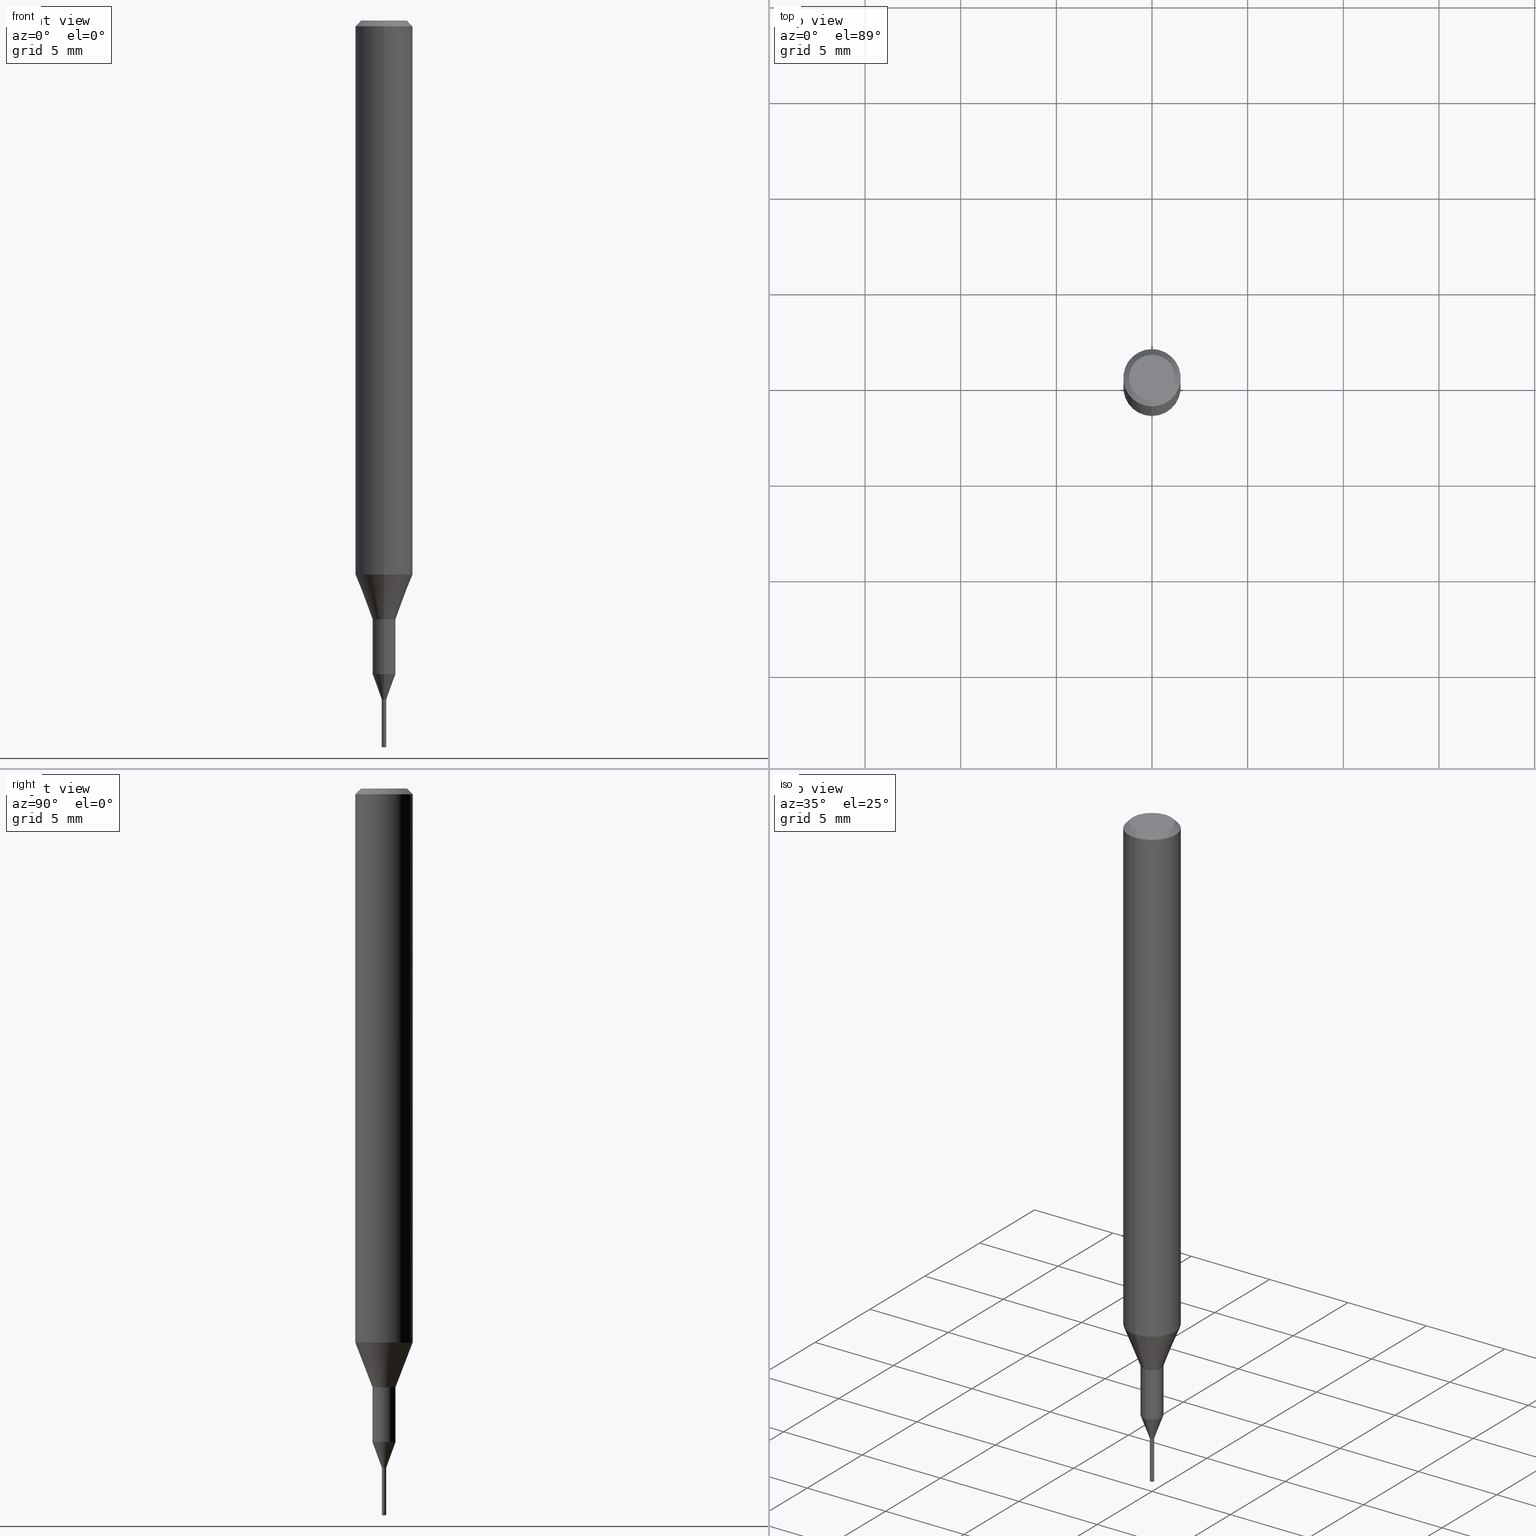
[diagram: canonical four-view strip — front | top / right | iso, engineering-drawing reading convention]
A machine part, canonical four-view strip (front | top / right | iso — engineering-drawing reading convention). The complete STEP part file that produces these views, byte-faithful:
ISO-10303-21;
HEADER;
FILE_DESCRIPTION(('no description'),'unknown implementation level');
FILE_NAME('C-UMD2023-025-Huellk.stp','  ',('CIMSOURCE GmbH'),('CADClick - KiM GmbH - www.kimweb.de'),'unknown preprocess','ACIS','unknown authorization');
FILE_SCHEMA(('automotive_design'));
ENDSEC;
DATA;
#1=MECHANICAL_DESIGN_GEOMETRIC_PRESENTATION_REPRESENTATION(' ',(#14,#15,#16,#17,#18,#19,#20,#21,#22,#23,#24,#25,#26,#27,#28,#29,#30,#31,#32,#33,#34,#35,#36,#37,#38,#39,#40,#41,#42,#43,#44,#45,#46,#47,#48,#49,#50,#51,#52,#53,#54,#55,#56,#57,#58,#59,#60,#61,#62,#63,#64,#65,#66,#67,#68,#69,#70,#71,#72,#73,#74,#75,#76,#77,#78,#79,#80,#81,#82,#83,#84,#85,#86,#87,#88,#89,#90,#91,#92),#10);
#2=PRODUCT_DEFINITION_CONTEXT('',#93,'design');
#3=APPLICATION_PROTOCOL_DEFINITION('INTERNATIONAL STANDARD','automotive_design',1994,#93);
#4=PRODUCT_CATEGORY_RELATIONSHIP('NONE','NONE',#94,#95);
#5=SHAPE_DEFINITION_REPRESENTATION(#96,#97);
#6=PRODUCT_DEFINITION_CONTEXT('',#98,'design');
#7=APPLICATION_PROTOCOL_DEFINITION('INTERNATIONAL STANDARD','automotive_design',1994,#98);
#8=PRODUCT_CATEGORY_RELATIONSHIP('NONE','NONE',#99,#100);
#9=SHAPE_DEFINITION_REPRESENTATION(#101,#102);
#10= (GEOMETRIC_REPRESENTATION_CONTEXT(3)GLOBAL_UNCERTAINTY_ASSIGNED_CONTEXT((#105))GLOBAL_UNIT_ASSIGNED_CONTEXT((#107,#108,#109))REPRESENTATION_CONTEXT('NONE','WORKSPACE'));
#14=STYLED_ITEM('',(#111),#112);
#15=STYLED_ITEM('',(#113),#114);
#16=STYLED_ITEM('',(#115),#116);
#17=STYLED_ITEM('',(#117),#118);
#18=STYLED_ITEM('',(#119),#120);
#19=STYLED_ITEM('',(#121),#122);
#20=STYLED_ITEM('',(#123),#124);
#21=STYLED_ITEM('',(#125),#126);
#22=STYLED_ITEM('',(#127),#128);
#23=STYLED_ITEM('',(#129),#130);
#24=STYLED_ITEM('',(#131),#132);
#25=STYLED_ITEM('',(#133),#134);
#26=STYLED_ITEM('',(#135),#136);
#27=STYLED_ITEM('',(#137),#138);
#28=STYLED_ITEM('',(#139),#140);
#29=STYLED_ITEM('',(#141),#142);
#30=STYLED_ITEM('',(#143),#144);
#31=STYLED_ITEM('',(#145),#146);
#32=STYLED_ITEM('',(#147),#148);
#33=STYLED_ITEM('',(#149),#150);
#34=STYLED_ITEM('',(#151),#152);
#35=STYLED_ITEM('',(#153),#154);
#36=STYLED_ITEM('',(#155),#156);
#37=STYLED_ITEM('',(#157),#158);
#38=STYLED_ITEM('',(#159),#160);
#39=STYLED_ITEM('',(#161),#162);
#40=STYLED_ITEM('',(#163),#164);
#41=STYLED_ITEM('',(#165),#166);
#42=STYLED_ITEM('',(#167),#168);
#43=STYLED_ITEM('',(#169),#170);
#44=STYLED_ITEM('',(#171),#172);
#45=STYLED_ITEM('',(#173),#174);
#46=STYLED_ITEM('',(#175),#176);
#47=STYLED_ITEM('',(#177),#178);
#48=STYLED_ITEM('',(#179),#180);
#49=STYLED_ITEM('',(#181),#182);
#50=STYLED_ITEM('',(#183),#184);
#51=STYLED_ITEM('',(#185),#186);
#52=STYLED_ITEM('',(#187),#188);
#53=STYLED_ITEM('',(#189),#190);
#54=STYLED_ITEM('',(#191),#192);
#55=STYLED_ITEM('',(#193),#194);
#56=STYLED_ITEM('',(#195),#196);
#57=STYLED_ITEM('',(#197),#198);
#58=STYLED_ITEM('',(#199),#200);
#59=STYLED_ITEM('',(#201),#202);
#60=STYLED_ITEM('',(#203),#204);
#61=STYLED_ITEM('',(#205),#206);
#62=STYLED_ITEM('',(#207),#208);
#63=STYLED_ITEM('',(#209),#210);
#64=STYLED_ITEM('',(#211),#212);
#65=STYLED_ITEM('',(#213),#214);
#66=STYLED_ITEM('',(#215),#216);
#67=STYLED_ITEM('',(#217),#218);
#68=STYLED_ITEM('',(#219),#220);
#69=STYLED_ITEM('',(#221),#222);
#70=STYLED_ITEM('',(#223),#224);
#71=STYLED_ITEM('',(#225),#226);
#72=STYLED_ITEM('',(#227),#228);
#73=STYLED_ITEM('',(#229),#230);
#74=STYLED_ITEM('',(#231),#232);
#75=STYLED_ITEM('',(#233),#234);
#76=STYLED_ITEM('',(#235),#236);
#77=STYLED_ITEM('',(#237),#238);
#78=STYLED_ITEM('',(#239),#240);
#79=STYLED_ITEM('',(#241),#242);
#80=STYLED_ITEM('',(#243),#244);
#81=STYLED_ITEM('',(#245),#246);
#82=STYLED_ITEM('',(#247),#248);
#83=STYLED_ITEM('',(#249),#250);
#84=STYLED_ITEM('',(#251),#252);
#85=STYLED_ITEM('',(#253),#254);
#86=STYLED_ITEM('',(#255),#256);
#87=STYLED_ITEM('',(#257),#258);
#88=STYLED_ITEM('',(#259),#260);
#89=STYLED_ITEM('',(#261),#262);
#90=STYLED_ITEM('',(#263),#264);
#91=STYLED_ITEM('',(#265),#266);
#92=STYLED_ITEM('',(#267),#268);
#93=APPLICATION_CONTEXT(' ');
#94=PRODUCT_CATEGORY('part','NONE');
#95=PRODUCT_RELATED_PRODUCT_CATEGORY('detail',' ',(#269));
#96=PRODUCT_DEFINITION_SHAPE('NONE','NONE',#270);
#97=ADVANCED_BREP_SHAPE_REPRESENTATION('1',(#118,#271),#10);
#98=APPLICATION_CONTEXT(' ');
#99=PRODUCT_CATEGORY('part','NONE');
#100=PRODUCT_RELATED_PRODUCT_CATEGORY('detail',' ',(#272));
#101=PRODUCT_DEFINITION_SHAPE('NONE','NONE',#273);
#102=ADVANCED_BREP_SHAPE_REPRESENTATION('2',(#120,#274),#10);
#105=UNCERTAINTY_MEASURE_WITH_UNIT(LENGTH_MEASURE(1.0E-006),#107,'','');
#107= (CONVERSION_BASED_UNIT('MILLIMETRE',#277)LENGTH_UNIT()NAMED_UNIT(#280));
#108= (NAMED_UNIT(#282)PLANE_ANGLE_UNIT()SI_UNIT($,.RADIAN.));
#109= (NAMED_UNIT(#282)SOLID_ANGLE_UNIT()SI_UNIT($,.STERADIAN.));
#111=PRESENTATION_STYLE_ASSIGNMENT((#288));
#112=VERTEX_POINT('',#289);
#113=PRESENTATION_STYLE_ASSIGNMENT((#290));
#114=EDGE_CURVE('',#260,#248,#291,.T.);
#115=PRESENTATION_STYLE_ASSIGNMENT((#292));
#116=ADVANCED_FACE('',(#293),#294,.T.);
#117=PRESENTATION_STYLE_ASSIGNMENT((#295));
#118=MANIFOLD_SOLID_BREP('1',#296);
#119=PRESENTATION_STYLE_ASSIGNMENT((#297));
#120=MANIFOLD_SOLID_BREP('2',#298);
#121=PRESENTATION_STYLE_ASSIGNMENT((#299));
#122=EDGE_CURVE('',#164,#112,#300,.T.);
#123=PRESENTATION_STYLE_ASSIGNMENT((#301));
#124=ADVANCED_FACE('',(#302),#303,.T.);
#125=PRESENTATION_STYLE_ASSIGNMENT((#304));
#126=ADVANCED_FACE('',(#305),#306,.T.);
#127=PRESENTATION_STYLE_ASSIGNMENT((#307));
#128=EDGE_CURVE('',#166,#260,#308,.T.);
#129=PRESENTATION_STYLE_ASSIGNMENT((#309));
#130=EDGE_CURVE('',#186,#142,#310,.T.);
#131=PRESENTATION_STYLE_ASSIGNMENT((#311));
#132=VERTEX_POINT('',#312);
#133=PRESENTATION_STYLE_ASSIGNMENT((#313));
#134=EDGE_CURVE('',#248,#196,#314,.T.);
#135=PRESENTATION_STYLE_ASSIGNMENT((#315));
#136=EDGE_CURVE('',#196,#166,#316,.T.);
#137=PRESENTATION_STYLE_ASSIGNMENT((#317));
#138=EDGE_CURVE('',#226,#238,#318,.T.);
#139=PRESENTATION_STYLE_ASSIGNMENT((#319));
#140=ADVANCED_FACE('',(#320),#321,.T.);
#141=PRESENTATION_STYLE_ASSIGNMENT((#322));
#142=VERTEX_POINT('',#323);
#143=PRESENTATION_STYLE_ASSIGNMENT((#324));
#144=EDGE_CURVE('',#188,#260,#325,.T.);
#145=PRESENTATION_STYLE_ASSIGNMENT((#326));
#146=EDGE_CURVE('',#132,#226,#327,.T.);
#147=PRESENTATION_STYLE_ASSIGNMENT((#328));
#148=ADVANCED_FACE('',(#329),#330,.T.);
#149=PRESENTATION_STYLE_ASSIGNMENT((#331));
#150=EDGE_CURVE('',#200,#188,#332,.T.);
#151=PRESENTATION_STYLE_ASSIGNMENT((#333));
#152=EDGE_CURVE('',#112,#186,#334,.T.);
#153=PRESENTATION_STYLE_ASSIGNMENT((#335));
#154=EDGE_CURVE('',#212,#196,#336,.T.);
#155=PRESENTATION_STYLE_ASSIGNMENT((#337));
#156=VERTEX_POINT('',#338);
#157=PRESENTATION_STYLE_ASSIGNMENT((#339));
#158=EDGE_CURVE('',#112,#164,#340,.T.);
#159=PRESENTATION_STYLE_ASSIGNMENT((#341));
#160=ADVANCED_FACE('',(#342),#343,.T.);
#161=PRESENTATION_STYLE_ASSIGNMENT((#344));
#162=EDGE_CURVE('',#206,#184,#345,.T.);
#163=PRESENTATION_STYLE_ASSIGNMENT((#346));
#164=VERTEX_POINT('',#347);
#165=PRESENTATION_STYLE_ASSIGNMENT((#348));
#166=VERTEX_POINT('',#349);
#167=PRESENTATION_STYLE_ASSIGNMENT((#350));
#168=ADVANCED_FACE('',(#351),#352,.T.);
#169=PRESENTATION_STYLE_ASSIGNMENT((#353));
#170=ADVANCED_FACE('',(#354),#355,.T.);
#171=PRESENTATION_STYLE_ASSIGNMENT((#356));
#172=EDGE_CURVE('',#142,#186,#357,.T.);
#173=PRESENTATION_STYLE_ASSIGNMENT((#358));
#174=ADVANCED_FACE('',(#359),#360,.T.);
#175=PRESENTATION_STYLE_ASSIGNMENT((#361));
#176=EDGE_CURVE('',#256,#212,#362,.T.);
#177=PRESENTATION_STYLE_ASSIGNMENT((#363));
#178=EDGE_CURVE('',#206,#112,#364,.T.);
#179=PRESENTATION_STYLE_ASSIGNMENT((#365));
#180=ADVANCED_FACE('',(#366,#367),#368,.T.);
#181=PRESENTATION_STYLE_ASSIGNMENT((#369));
#182=ADVANCED_FACE('',(#370),#371,.T.);
#183=PRESENTATION_STYLE_ASSIGNMENT((#372));
#184=VERTEX_POINT('',#373);
#185=PRESENTATION_STYLE_ASSIGNMENT((#374));
#186=VERTEX_POINT('',#375);
#187=PRESENTATION_STYLE_ASSIGNMENT((#376));
#188=VERTEX_POINT('',#377);
#189=PRESENTATION_STYLE_ASSIGNMENT((#378));
#190=EDGE_CURVE('',#132,#238,#379,.T.);
#191=PRESENTATION_STYLE_ASSIGNMENT((#380));
#192=EDGE_CURVE('',#204,#208,#381,.T.);
#193=PRESENTATION_STYLE_ASSIGNMENT((#382));
#194=ADVANCED_FACE('',(#383),#384,.T.);
#195=PRESENTATION_STYLE_ASSIGNMENT((#385));
#196=VERTEX_POINT('',#386);
#197=PRESENTATION_STYLE_ASSIGNMENT((#387));
#198=EDGE_CURVE('',#142,#164,#388,.T.);
#199=PRESENTATION_STYLE_ASSIGNMENT((#389));
#200=VERTEX_POINT('',#390);
#201=PRESENTATION_STYLE_ASSIGNMENT((#391));
#202=EDGE_CURVE('',#164,#184,#392,.T.);
#203=PRESENTATION_STYLE_ASSIGNMENT((#393));
#204=VERTEX_POINT('',#394);
#205=PRESENTATION_STYLE_ASSIGNMENT((#395));
#206=VERTEX_POINT('',#396);
#207=PRESENTATION_STYLE_ASSIGNMENT((#397));
#208=VERTEX_POINT('',#398);
#209=PRESENTATION_STYLE_ASSIGNMENT((#399));
#210=ADVANCED_FACE('',(#400),#401,.T.);
#211=PRESENTATION_STYLE_ASSIGNMENT((#402));
#212=VERTEX_POINT('',#403);
#213=PRESENTATION_STYLE_ASSIGNMENT((#404));
#214=VERTEX_POINT('',#405);
#215=PRESENTATION_STYLE_ASSIGNMENT((#406));
#216=EDGE_CURVE('',#156,#214,#407,.T.);
#217=PRESENTATION_STYLE_ASSIGNMENT((#408));
#218=EDGE_CURVE('',#184,#206,#409,.T.);
#219=PRESENTATION_STYLE_ASSIGNMENT((#410));
#220=EDGE_CURVE('',#238,#132,#411,.T.);
#221=PRESENTATION_STYLE_ASSIGNMENT((#412));
#222=EDGE_CURVE('',#248,#256,#413,.T.);
#223=PRESENTATION_STYLE_ASSIGNMENT((#414));
#224=ADVANCED_FACE('',(#415),#416,.T.);
#225=PRESENTATION_STYLE_ASSIGNMENT((#417));
#226=VERTEX_POINT('',#418);
#227=PRESENTATION_STYLE_ASSIGNMENT((#419));
#228=ADVANCED_FACE('',(#420),#421,.T.);
#229=PRESENTATION_STYLE_ASSIGNMENT((#422));
#230=EDGE_CURVE('',#204,#156,#423,.T.);
#231=PRESENTATION_STYLE_ASSIGNMENT((#424));
#232=EDGE_CURVE('',#212,#256,#425,.T.);
#233=PRESENTATION_STYLE_ASSIGNMENT((#426));
#234=EDGE_CURVE('',#214,#156,#427,.T.);
#235=PRESENTATION_STYLE_ASSIGNMENT((#428));
#236=EDGE_CURVE('',#260,#166,#429,.T.);
#237=PRESENTATION_STYLE_ASSIGNMENT((#430));
#238=VERTEX_POINT('',#431);
#239=PRESENTATION_STYLE_ASSIGNMENT((#432));
#240=EDGE_CURVE('',#208,#132,#433,.T.);
#241=PRESENTATION_STYLE_ASSIGNMENT((#434));
#242=EDGE_CURVE('',#208,#204,#435,.T.);
#243=PRESENTATION_STYLE_ASSIGNMENT((#436));
#244=EDGE_CURVE('',#238,#204,#437,.T.);
#245=PRESENTATION_STYLE_ASSIGNMENT((#438));
#246=ADVANCED_FACE('',(#439),#440,.T.);
#247=PRESENTATION_STYLE_ASSIGNMENT((#441));
#248=VERTEX_POINT('',#442);
#249=PRESENTATION_STYLE_ASSIGNMENT((#443));
#250=EDGE_CURVE('',#188,#200,#444,.T.);
#251=PRESENTATION_STYLE_ASSIGNMENT((#445));
#252=EDGE_CURVE('',#214,#208,#446,.T.);
#253=PRESENTATION_STYLE_ASSIGNMENT((#447));
#254=EDGE_CURVE('',#196,#248,#448,.T.);
#255=PRESENTATION_STYLE_ASSIGNMENT((#449));
#256=VERTEX_POINT('',#450);
#257=PRESENTATION_STYLE_ASSIGNMENT((#451));
#258=ADVANCED_FACE('',(#452),#453,.T.);
#259=PRESENTATION_STYLE_ASSIGNMENT((#454));
#260=VERTEX_POINT('',#455);
#261=PRESENTATION_STYLE_ASSIGNMENT((#456));
#262=ADVANCED_FACE('',(#457),#458,.T.);
#263=PRESENTATION_STYLE_ASSIGNMENT((#459));
#264=EDGE_CURVE('',#166,#200,#460,.T.);
#265=PRESENTATION_STYLE_ASSIGNMENT((#461));
#266=ADVANCED_FACE('',(#462),#463,.T.);
#267=PRESENTATION_STYLE_ASSIGNMENT((#464));
#268=ADVANCED_FACE('',(#465),#466,.T.);
#269=PRODUCT('1','1','PART-1-DESC',(#467));
#270=PRODUCT_DEFINITION('NONE','NONE',#468,#2);
#271=AXIS2_PLACEMENT_3D('',#469,#470,#471);
#272=PRODUCT('2','2','PART-2-DESC',(#472));
#273=PRODUCT_DEFINITION('NONE','NONE',#473,#6);
#274=AXIS2_PLACEMENT_3D('',#474,#475,#476);
#277=LENGTH_MEASURE_WITH_UNIT(LENGTH_MEASURE(1.0),#477);
#280=DIMENSIONAL_EXPONENTS(1.0,0.0,0.0,0.0,0.0,0.0,0.0);
#282=DIMENSIONAL_EXPONENTS(0.0,0.0,0.0,0.0,0.0,0.0,0.0);
#288=POINT_STYLE(' ',#478,POSITIVE_LENGTH_MEASURE(1.0E-006),#479);
#289=CARTESIAN_POINT('',(7.34702581975735E-017,-0.59995,-34.167));
#290=CURVE_STYLE('',#480,POSITIVE_LENGTH_MEASURE(1.0E-006),#481);
#291=LINE('',#482,#483);
#292=SURFACE_STYLE_USAGE(.BOTH.,#484);
#293=FACE_OUTER_BOUND('',#485,.T.);
#294=CONICAL_SURFACE('',#486,0.357493190172543,0.34891856905372);
#295=SURFACE_STYLE_USAGE(.BOTH.,#487);
#296=CLOSED_SHELL('',(#174,#210,#126,#140,#268,#246,#148,#228,#194,#180,#160,#116,#168));
#297=SURFACE_STYLE_USAGE(.BOTH.,#488);
#298=CLOSED_SHELL('',(#124,#266,#182,#262,#224,#258,#170));
#299=CURVE_STYLE('',#489,POSITIVE_LENGTH_MEASURE(1.0E-006),#490);
#300=CIRCLE('',#491,0.59995);
#301=SURFACE_STYLE_USAGE(.BOTH.,#492);
#302=FACE_OUTER_BOUND('',#493,.T.);
#303=CONICAL_SURFACE('',#494,0.0575,1.30899691570758);
#304=SURFACE_STYLE_USAGE(.BOTH.,#495);
#305=FACE_OUTER_BOUND('',#496,.T.);
#306=CONICAL_SURFACE('',#497,1.05,0.366459241971866);
#307=CURVE_STYLE('',#498,POSITIVE_LENGTH_MEASURE(1.0E-006),#499);
#308=CIRCLE('',#500,1.5);
#309=CURVE_STYLE('',#501,POSITIVE_LENGTH_MEASURE(1.0E-006),#502);
#310=CIRCLE('',#503,0.59995);
#311=POINT_STYLE(' ',#504,POSITIVE_LENGTH_MEASURE(1.0E-006),#505);
#312=CARTESIAN_POINT('',(-0.115,0.0,-37.96918584));
#313=CURVE_STYLE('',#506,POSITIVE_LENGTH_MEASURE(1.0E-006),#507);
#314=CIRCLE('',#508,1.5);
#315=CURVE_STYLE('',#509,POSITIVE_LENGTH_MEASURE(1.0E-006),#510);
#316=LINE('',#511,#512);
#317=CURVE_STYLE('',#513,POSITIVE_LENGTH_MEASURE(1.0E-006),#514);
#318=LINE('',#515,#516);
#319=SURFACE_STYLE_USAGE(.BOTH.,#517);
#320=FACE_OUTER_BOUND('',#518,.T.);
#321=CYLINDRICAL_SURFACE('',#519,1.5);
#322=POINT_STYLE(' ',#520,POSITIVE_LENGTH_MEASURE(1.0E-006),#521);
#323=CARTESIAN_POINT('',(0.0,0.59995,-31.3));
#324=CURVE_STYLE('',#522,POSITIVE_LENGTH_MEASURE(1.0E-006),#523);
#325=LINE('',#524,#525);
#326=CURVE_STYLE('',#526,POSITIVE_LENGTH_MEASURE(1.0E-006),#527);
#327=LINE('',#528,#529);
#328=SURFACE_STYLE_USAGE(.BOTH.,#530);
#329=FACE_OUTER_BOUND('',#531,.T.);
#330=CONICAL_SURFACE('',#532,1.35,0.785398163397447);
#331=CURVE_STYLE('',#533,POSITIVE_LENGTH_MEASURE(1.0E-006),#534);
#332=CIRCLE('',#535,0.6);
#333=CURVE_STYLE('',#536,POSITIVE_LENGTH_MEASURE(1.0E-006),#537);
#334=LINE('',#538,#539);
#335=CURVE_STYLE('',#540,POSITIVE_LENGTH_MEASURE(1.0E-006),#541);
#336=LINE('',#542,#543);
#337=POINT_STYLE(' ',#544,POSITIVE_LENGTH_MEASURE(1.0E-006),#545);
#338=CARTESIAN_POINT('',(0.116036384096024,1.42098893238565E-017,-35.4999));
#339=CURVE_STYLE('',#546,POSITIVE_LENGTH_MEASURE(1.0E-006),#547);
#340=CIRCLE('',#548,0.59995);
#341=SURFACE_STYLE_USAGE(.BOTH.,#549);
#342=FACE_OUTER_BOUND('',#550,.T.);
#343=CYLINDRICAL_SURFACE('',#551,0.59995);
#344=CURVE_STYLE('',#552,POSITIVE_LENGTH_MEASURE(1.0E-006),#553);
#345=CIRCLE('',#554,0.115036380345086);
#346=POINT_STYLE(' ',#555,POSITIVE_LENGTH_MEASURE(1.0E-006),#556);
#347=CARTESIAN_POINT('',(0.0,0.59995,-34.167));
#348=POINT_STYLE(' ',#557,POSITIVE_LENGTH_MEASURE(1.0E-006),#558);
#349=CARTESIAN_POINT('',(0.0,1.5,-28.955));
#350=SURFACE_STYLE_USAGE(.BOTH.,#559);
#351=FACE_OUTER_BOUND('',#560,.T.);
#352=PLANE('',#561);
#353=SURFACE_STYLE_USAGE(.BOTH.,#562);
#354=FACE_OUTER_BOUND('',#563,.T.);
#355=CONICAL_SURFACE('',#564,0.0575,1.30899691570758);
#356=CURVE_STYLE('',#565,POSITIVE_LENGTH_MEASURE(1.0E-006),#566);
#357=CIRCLE('',#567,0.59995);
#358=SURFACE_STYLE_USAGE(.BOTH.,#568);
#359=FACE_OUTER_BOUND('',#569,.T.);
#360=CONICAL_SURFACE('',#570,0.357493190172543,0.34891856905372);
#361=CURVE_STYLE('',#571,POSITIVE_LENGTH_MEASURE(1.0E-006),#572);
#362=CIRCLE('',#573,1.2);
#363=CURVE_STYLE('',#574,POSITIVE_LENGTH_MEASURE(1.0E-006),#575);
#364=LINE('',#576,#577);
#365=SURFACE_STYLE_USAGE(.BOTH.,#578);
#366=FACE_BOUND('',#579,.T.);
#367=FACE_OUTER_BOUND('',#580,.T.);
#368=PLANE('',#581);
#369=SURFACE_STYLE_USAGE(.BOTH.,#582);
#370=FACE_OUTER_BOUND('',#583,.T.);
#371=CONICAL_SURFACE('',#584,0.115518192048012,1.47460478653553);
#372=POINT_STYLE(' ',#585,POSITIVE_LENGTH_MEASURE(1.0E-006),#586);
#373=CARTESIAN_POINT('',(0.0,0.115036380345086,-35.4999));
#374=POINT_STYLE(' ',#587,POSITIVE_LENGTH_MEASURE(1.0E-006),#588);
#375=CARTESIAN_POINT('',(7.34702581975735E-017,-0.59995,-31.3));
#376=POINT_STYLE(' ',#589,POSITIVE_LENGTH_MEASURE(1.0E-006),#590);
#377=CARTESIAN_POINT('',(7.34763812293426E-017,-0.6,-31.3));
#378=CURVE_STYLE('',#591,POSITIVE_LENGTH_MEASURE(1.0E-006),#592);
#379=CIRCLE('',#593,0.115);
#380=CURVE_STYLE('',#594,POSITIVE_LENGTH_MEASURE(1.0E-006),#595);
#381=CIRCLE('',#596,0.115);
#382=SURFACE_STYLE_USAGE(.BOTH.,#597);
#383=FACE_OUTER_BOUND('',#598,.T.);
#384=CONICAL_SURFACE('',#599,1.05,0.366459241971866);
#385=POINT_STYLE(' ',#600,POSITIVE_LENGTH_MEASURE(1.0E-006),#601);
#386=CARTESIAN_POINT('',(0.0,1.5,-0.300000000000001));
#387=CURVE_STYLE('',#602,POSITIVE_LENGTH_MEASURE(1.0E-006),#603);
#388=LINE('',#604,#605);
#389=POINT_STYLE(' ',#606,POSITIVE_LENGTH_MEASURE(1.0E-006),#607);
#390=CARTESIAN_POINT('',(0.0,0.6,-31.3));
#391=CURVE_STYLE('',#608,POSITIVE_LENGTH_MEASURE(1.0E-006),#609);
#392=LINE('',#610,#611);
#393=POINT_STYLE(' ',#612,POSITIVE_LENGTH_MEASURE(1.0E-006),#613);
#394=CARTESIAN_POINT('',(0.115,1.40829730689573E-017,-35.5));
#395=POINT_STYLE(' ',#614,POSITIVE_LENGTH_MEASURE(1.0E-006),#615);
#396=CARTESIAN_POINT('',(1.4087428229132E-017,-0.115036380345086,-35.4999));
#397=POINT_STYLE(' ',#616,POSITIVE_LENGTH_MEASURE(1.0E-006),#617);
#398=CARTESIAN_POINT('',(-0.115,0.0,-35.5));
#399=SURFACE_STYLE_USAGE(.BOTH.,#618);
#400=FACE_OUTER_BOUND('',#619,.T.);
#401=CYLINDRICAL_SURFACE('',#620,0.59995);
#402=POINT_STYLE(' ',#621,POSITIVE_LENGTH_MEASURE(1.0E-006),#622);
#403=CARTESIAN_POINT('',(0.0,1.2,0.0));
#404=POINT_STYLE(' ',#623,POSITIVE_LENGTH_MEASURE(1.0E-006),#624);
#405=CARTESIAN_POINT('',(-0.116036384096024,0.0,-35.4999));
#406=CURVE_STYLE('',#625,POSITIVE_LENGTH_MEASURE(1.0E-006),#626);
#407=CIRCLE('',#627,0.116036384096024);
#408=CURVE_STYLE('',#628,POSITIVE_LENGTH_MEASURE(1.0E-006),#629);
#409=CIRCLE('',#630,0.115036380345086);
#410=CURVE_STYLE('',#631,POSITIVE_LENGTH_MEASURE(1.0E-006),#632);
#411=CIRCLE('',#633,0.115);
#412=CURVE_STYLE('',#634,POSITIVE_LENGTH_MEASURE(1.0E-006),#635);
#413=LINE('',#636,#637);
#414=SURFACE_STYLE_USAGE(.BOTH.,#638);
#415=FACE_OUTER_BOUND('',#639,.T.);
#416=CONICAL_SURFACE('',#640,0.115518192048012,1.47460478653553);
#417=POINT_STYLE(' ',#641,POSITIVE_LENGTH_MEASURE(1.0E-006),#642);
#418=CARTESIAN_POINT('',(0.0,0.0,-38.0));
#419=SURFACE_STYLE_USAGE(.BOTH.,#643);
#420=FACE_OUTER_BOUND('',#644,.T.);
#421=CYLINDRICAL_SURFACE('',#645,1.5);
#422=CURVE_STYLE('',#646,POSITIVE_LENGTH_MEASURE(1.0E-006),#647);
#423=LINE('',#648,#649);
#424=CURVE_STYLE('',#650,POSITIVE_LENGTH_MEASURE(1.0E-006),#651);
#425=CIRCLE('',#652,1.2);
#426=CURVE_STYLE('',#653,POSITIVE_LENGTH_MEASURE(1.0E-006),#654);
#427=CIRCLE('',#655,0.116036384096024);
#428=CURVE_STYLE('',#656,POSITIVE_LENGTH_MEASURE(1.0E-006),#657);
#429=CIRCLE('',#658,1.5);
#430=POINT_STYLE(' ',#659,POSITIVE_LENGTH_MEASURE(1.0E-006),#660);
#431=CARTESIAN_POINT('',(0.115,1.40829730689573E-017,-37.96918584));
#432=CURVE_STYLE('',#661,POSITIVE_LENGTH_MEASURE(1.0E-006),#662);
#433=LINE('',#663,#664);
#434=CURVE_STYLE('',#665,POSITIVE_LENGTH_MEASURE(1.0E-006),#666);
#435=CIRCLE('',#667,0.115);
#436=CURVE_STYLE('',#668,POSITIVE_LENGTH_MEASURE(1.0E-006),#669);
#437=LINE('',#670,#671);
#438=SURFACE_STYLE_USAGE(.BOTH.,#672);
#439=FACE_OUTER_BOUND('',#673,.T.);
#440=PLANE('',#674);
#441=POINT_STYLE(' ',#675,POSITIVE_LENGTH_MEASURE(1.0E-006),#676);
#442=CARTESIAN_POINT('',(1.83690953073357E-016,-1.5,-0.300000000000001));
#443=CURVE_STYLE('',#677,POSITIVE_LENGTH_MEASURE(1.0E-006),#678);
#444=CIRCLE('',#679,0.6);
#445=CURVE_STYLE('',#680,POSITIVE_LENGTH_MEASURE(1.0E-006),#681);
#446=LINE('',#682,#683);
#447=CURVE_STYLE('',#684,POSITIVE_LENGTH_MEASURE(1.0E-006),#685);
#448=CIRCLE('',#686,1.5);
#449=POINT_STYLE(' ',#687,POSITIVE_LENGTH_MEASURE(1.0E-006),#688);
#450=CARTESIAN_POINT('',(1.46952762458685E-016,-1.2,0.0));
#451=SURFACE_STYLE_USAGE(.BOTH.,#689);
#452=FACE_OUTER_BOUND('',#690,.T.);
#453=CYLINDRICAL_SURFACE('',#691,0.115);
#454=POINT_STYLE(' ',#692,POSITIVE_LENGTH_MEASURE(1.0E-006),#693);
#455=CARTESIAN_POINT('',(1.83690953073357E-016,-1.5,-28.955));
#456=SURFACE_STYLE_USAGE(.BOTH.,#694);
#457=FACE_OUTER_BOUND('',#695,.T.);
#458=PLANE('',#696);
#459=CURVE_STYLE('',#697,POSITIVE_LENGTH_MEASURE(1.0E-006),#698);
#460=LINE('',#699,#700);
#461=SURFACE_STYLE_USAGE(.BOTH.,#701);
#462=FACE_OUTER_BOUND('',#702,.T.);
#463=CYLINDRICAL_SURFACE('',#703,0.115);
#464=SURFACE_STYLE_USAGE(.BOTH.,#704);
#465=FACE_OUTER_BOUND('',#705,.T.);
#466=CONICAL_SURFACE('',#706,1.35,0.785398163397447);
#467=PRODUCT_CONTEXT('',#93,'mechanical');
#468=PRODUCT_DEFINITION_FORMATION_WITH_SPECIFIED_SOURCE(' ','NONE',#269,.NOT_KNOWN.);
#469=CARTESIAN_POINT('',(0.0,0.0,0.0));
#470=DIRECTION('',(0.0,0.0,1.0));
#471=DIRECTION('',(1.0,0.0,0.0));
#472=PRODUCT_CONTEXT('',#98,'mechanical');
#473=PRODUCT_DEFINITION_FORMATION_WITH_SPECIFIED_SOURCE(' ','NONE',#272,.NOT_KNOWN.);
#474=CARTESIAN_POINT('',(0.0,0.0,0.0));
#475=DIRECTION('',(0.0,0.0,1.0));
#476=DIRECTION('',(1.0,0.0,0.0));
#477= (NAMED_UNIT(#280)LENGTH_UNIT()SI_UNIT(.MILLI.,.METRE.));
#478=PRE_DEFINED_MARKER('');
#479=COLOUR_RGB('',0.498039215803146,0.498039215803146,0.498039215803146);
#480=DRAUGHTING_PRE_DEFINED_CURVE_FONT('continuous');
#481=COLOUR_RGB('',0.498039215803146,0.498039215803146,0.498039215803146);
#482=CARTESIAN_POINT('',(1.83690953073357E-016,-1.5,-14.6275));
#483=VECTOR('',#708,1.0);
#484=SURFACE_SIDE_STYLE('',(#709));
#485=EDGE_LOOP('',(#710,#711,#712,#713));
#486=AXIS2_PLACEMENT_3D('',#714,#715,#716);
#487=SURFACE_SIDE_STYLE('',(#717));
#488=SURFACE_SIDE_STYLE('',(#718));
#489=DRAUGHTING_PRE_DEFINED_CURVE_FONT('continuous');
#490=COLOUR_RGB('',0.498039215803146,0.498039215803146,0.498039215803146);
#491=AXIS2_PLACEMENT_3D('',#719,#720,#721);
#492=SURFACE_SIDE_STYLE('',(#722));
#493=EDGE_LOOP('',(#723,#724,#725));
#494=AXIS2_PLACEMENT_3D('',#726,#727,#728);
#495=SURFACE_SIDE_STYLE('',(#729));
#496=EDGE_LOOP('',(#730,#731,#732,#733));
#497=AXIS2_PLACEMENT_3D('',#734,#735,#736);
#498=DRAUGHTING_PRE_DEFINED_CURVE_FONT('continuous');
#499=COLOUR_RGB('',0.498039215803146,0.498039215803146,0.498039215803146);
#500=AXIS2_PLACEMENT_3D('',#737,#738,#739);
#501=DRAUGHTING_PRE_DEFINED_CURVE_FONT('continuous');
#502=COLOUR_RGB('',0.498039215803146,0.498039215803146,0.498039215803146);
#503=AXIS2_PLACEMENT_3D('',#740,#741,#742);
#504=PRE_DEFINED_MARKER('');
#505=COLOUR_RGB('',0.800000011920929,0.800000011920929,0.800000011920929);
#506=DRAUGHTING_PRE_DEFINED_CURVE_FONT('continuous');
#507=COLOUR_RGB('',0.498039215803146,0.498039215803146,0.498039215803146);
#508=AXIS2_PLACEMENT_3D('',#743,#744,#745);
#509=DRAUGHTING_PRE_DEFINED_CURVE_FONT('continuous');
#510=COLOUR_RGB('',0.498039215803146,0.498039215803146,0.498039215803146);
#511=CARTESIAN_POINT('',(-1.83690953073357E-016,1.5,-14.6275));
#512=VECTOR('',#746,1.0);
#513=DRAUGHTING_PRE_DEFINED_CURVE_FONT('continuous');
#514=COLOUR_RGB('',0.800000011920929,0.800000011920929,0.800000011920929);
#515=CARTESIAN_POINT('',(0.0575,7.04148653447867E-018,-37.98459292));
#516=VECTOR('',#747,1.0);
#517=SURFACE_SIDE_STYLE('',(#748));
#518=EDGE_LOOP('',(#749,#750,#751,#752));
#519=AXIS2_PLACEMENT_3D('',#753,#754,#755);
#520=PRE_DEFINED_MARKER('');
#521=COLOUR_RGB('',0.498039215803146,0.498039215803146,0.498039215803146);
#522=DRAUGHTING_PRE_DEFINED_CURVE_FONT('continuous');
#523=COLOUR_RGB('',0.498039215803146,0.498039215803146,0.498039215803146);
#524=CARTESIAN_POINT('',(1.2858366715135E-016,-1.05,-30.1275));
#525=VECTOR('',#756,1.0);
#526=DRAUGHTING_PRE_DEFINED_CURVE_FONT('continuous');
#527=COLOUR_RGB('',0.800000011920929,0.800000011920929,0.800000011920929);
#528=CARTESIAN_POINT('',(-0.0575,-7.04148653447867E-018,-37.98459292));
#529=VECTOR('',#757,1.0);
#530=SURFACE_SIDE_STYLE('',(#758));
#531=EDGE_LOOP('',(#759,#760,#761,#762));
#532=AXIS2_PLACEMENT_3D('',#763,#764,#765);
#533=DRAUGHTING_PRE_DEFINED_CURVE_FONT('continuous');
#534=COLOUR_RGB('',0.498039215803146,0.498039215803146,0.498039215803146);
#535=AXIS2_PLACEMENT_3D('',#766,#767,#768);
#536=DRAUGHTING_PRE_DEFINED_CURVE_FONT('continuous');
#537=COLOUR_RGB('',0.498039215803146,0.498039215803146,0.498039215803146);
#538=CARTESIAN_POINT('',(7.34702581975735E-017,-0.59995,-32.7335));
#539=VECTOR('',#769,1.0);
#540=DRAUGHTING_PRE_DEFINED_CURVE_FONT('continuous');
#541=COLOUR_RGB('',0.498039215803146,0.498039215803146,0.498039215803146);
#542=CARTESIAN_POINT('',(-1.65321857766021E-016,1.35,-0.149999999999999));
#543=VECTOR('',#770,1.0);
#544=PRE_DEFINED_MARKER('');
#545=COLOUR_RGB('',0.800000011920929,0.800000011920929,0.800000011920929);
#546=DRAUGHTING_PRE_DEFINED_CURVE_FONT('continuous');
#547=COLOUR_RGB('',0.498039215803146,0.498039215803146,0.498039215803146);
#548=AXIS2_PLACEMENT_3D('',#771,#772,#773);
#549=SURFACE_SIDE_STYLE('',(#774));
#550=EDGE_LOOP('',(#775,#776,#777,#778));
#551=AXIS2_PLACEMENT_3D('',#779,#780,#781);
#552=DRAUGHTING_PRE_DEFINED_CURVE_FONT('continuous');
#553=COLOUR_RGB('',0.498039215803146,0.498039215803146,0.498039215803146);
#554=AXIS2_PLACEMENT_3D('',#782,#783,#784);
#555=PRE_DEFINED_MARKER('');
#556=COLOUR_RGB('',0.498039215803146,0.498039215803146,0.498039215803146);
#557=PRE_DEFINED_MARKER('');
#558=COLOUR_RGB('',0.498039215803146,0.498039215803146,0.498039215803146);
#559=SURFACE_SIDE_STYLE('',(#785));
#560=EDGE_LOOP('',(#786,#787));
#561=AXIS2_PLACEMENT_3D('',#788,#789,#790);
#562=SURFACE_SIDE_STYLE('',(#791));
#563=EDGE_LOOP('',(#792,#793,#794));
#564=AXIS2_PLACEMENT_3D('',#795,#796,#797);
#565=DRAUGHTING_PRE_DEFINED_CURVE_FONT('continuous');
#566=COLOUR_RGB('',0.498039215803146,0.498039215803146,0.498039215803146);
#567=AXIS2_PLACEMENT_3D('',#798,#799,#800);
#568=SURFACE_SIDE_STYLE('',(#801));
#569=EDGE_LOOP('',(#802,#803,#804,#805));
#570=AXIS2_PLACEMENT_3D('',#806,#807,#808);
#571=DRAUGHTING_PRE_DEFINED_CURVE_FONT('continuous');
#572=COLOUR_RGB('',0.498039215803146,0.498039215803146,0.498039215803146);
#573=AXIS2_PLACEMENT_3D('',#809,#810,#811);
#574=DRAUGHTING_PRE_DEFINED_CURVE_FONT('continuous');
#575=COLOUR_RGB('',0.498039215803146,0.498039215803146,0.498039215803146);
#576=CARTESIAN_POINT('',(4.37788432133528E-017,-0.357493190172543,-34.83345));
#577=VECTOR('',#812,1.0);
#578=SURFACE_SIDE_STYLE('',(#813));
#579=EDGE_LOOP('',(#814,#815));
#580=EDGE_LOOP('',(#816,#817));
#581=AXIS2_PLACEMENT_3D('',#818,#819,#820);
#582=SURFACE_SIDE_STYLE('',(#821));
#583=EDGE_LOOP('',(#822,#823,#824,#825));
#584=AXIS2_PLACEMENT_3D('',#826,#827,#828);
#585=PRE_DEFINED_MARKER('');
#586=COLOUR_RGB('',0.498039215803146,0.498039215803146,0.498039215803146);
#587=PRE_DEFINED_MARKER('');
#588=COLOUR_RGB('',0.498039215803146,0.498039215803146,0.498039215803146);
#589=PRE_DEFINED_MARKER('');
#590=COLOUR_RGB('',0.498039215803146,0.498039215803146,0.498039215803146);
#591=DRAUGHTING_PRE_DEFINED_CURVE_FONT('continuous');
#592=COLOUR_RGB('',0.800000011920929,0.800000011920929,0.800000011920929);
#593=AXIS2_PLACEMENT_3D('',#829,#830,#831);
#594=DRAUGHTING_PRE_DEFINED_CURVE_FONT('continuous');
#595=COLOUR_RGB('',0.800000011920929,0.800000011920929,0.800000011920929);
#596=AXIS2_PLACEMENT_3D('',#832,#833,#834);
#597=SURFACE_SIDE_STYLE('',(#835));
#598=EDGE_LOOP('',(#836,#837,#838,#839));
#599=AXIS2_PLACEMENT_3D('',#840,#841,#842);
#600=PRE_DEFINED_MARKER('');
#601=COLOUR_RGB('',0.498039215803146,0.498039215803146,0.498039215803146);
#602=DRAUGHTING_PRE_DEFINED_CURVE_FONT('continuous');
#603=COLOUR_RGB('',0.498039215803146,0.498039215803146,0.498039215803146);
#604=CARTESIAN_POINT('',(-7.34702581975735E-017,0.59995,-32.7335));
#605=VECTOR('',#843,1.0);
#606=PRE_DEFINED_MARKER('');
#607=COLOUR_RGB('',0.498039215803146,0.498039215803146,0.498039215803146);
#608=DRAUGHTING_PRE_DEFINED_CURVE_FONT('continuous');
#609=COLOUR_RGB('',0.498039215803146,0.498039215803146,0.498039215803146);
#610=CARTESIAN_POINT('',(-4.37788432133528E-017,0.357493190172543,-34.83345));
#611=VECTOR('',#844,1.0);
#612=PRE_DEFINED_MARKER('');
#613=COLOUR_RGB('',0.800000011920929,0.800000011920929,0.800000011920929);
#614=PRE_DEFINED_MARKER('');
#615=COLOUR_RGB('',0.498039215803146,0.498039215803146,0.498039215803146);
#616=PRE_DEFINED_MARKER('');
#617=COLOUR_RGB('',0.800000011920929,0.800000011920929,0.800000011920929);
#618=SURFACE_SIDE_STYLE('',(#845));
#619=EDGE_LOOP('',(#846,#847,#848,#849));
#620=AXIS2_PLACEMENT_3D('',#850,#851,#852);
#621=PRE_DEFINED_MARKER('');
#622=COLOUR_RGB('',0.498039215803146,0.498039215803146,0.498039215803146);
#623=PRE_DEFINED_MARKER('');
#624=COLOUR_RGB('',0.800000011920929,0.800000011920929,0.800000011920929);
#625=DRAUGHTING_PRE_DEFINED_CURVE_FONT('continuous');
#626=COLOUR_RGB('',0.800000011920929,0.800000011920929,0.800000011920929);
#627=AXIS2_PLACEMENT_3D('',#853,#854,#855);
#628=DRAUGHTING_PRE_DEFINED_CURVE_FONT('continuous');
#629=COLOUR_RGB('',0.498039215803146,0.498039215803146,0.498039215803146);
#630=AXIS2_PLACEMENT_3D('',#856,#857,#858);
#631=DRAUGHTING_PRE_DEFINED_CURVE_FONT('continuous');
#632=COLOUR_RGB('',0.800000011920929,0.800000011920929,0.800000011920929);
#633=AXIS2_PLACEMENT_3D('',#859,#860,#861);
#634=DRAUGHTING_PRE_DEFINED_CURVE_FONT('continuous');
#635=COLOUR_RGB('',0.498039215803146,0.498039215803146,0.498039215803146);
#636=CARTESIAN_POINT('',(1.65321857766021E-016,-1.35,-0.149999999999999));
#637=VECTOR('',#862,1.0);
#638=SURFACE_SIDE_STYLE('',(#863));
#639=EDGE_LOOP('',(#864,#865,#866,#867));
#640=AXIS2_PLACEMENT_3D('',#868,#869,#870);
#641=PRE_DEFINED_MARKER('');
#642=COLOUR_RGB('',0.800000011920929,0.800000011920929,0.800000011920929);
#643=SURFACE_SIDE_STYLE('',(#871));
#644=EDGE_LOOP('',(#872,#873,#874,#875));
#645=AXIS2_PLACEMENT_3D('',#876,#877,#878);
#646=DRAUGHTING_PRE_DEFINED_CURVE_FONT('continuous');
#647=COLOUR_RGB('',0.800000011920929,0.800000011920929,0.800000011920929);
#648=CARTESIAN_POINT('',(0.115518192048012,1.41464311964069E-017,-35.49995));
#649=VECTOR('',#879,1.0);
#650=DRAUGHTING_PRE_DEFINED_CURVE_FONT('continuous');
#651=COLOUR_RGB('',0.498039215803146,0.498039215803146,0.498039215803146);
#652=AXIS2_PLACEMENT_3D('',#880,#881,#882);
#653=DRAUGHTING_PRE_DEFINED_CURVE_FONT('continuous');
#654=COLOUR_RGB('',0.800000011920929,0.800000011920929,0.800000011920929);
#655=AXIS2_PLACEMENT_3D('',#883,#884,#885);
#656=DRAUGHTING_PRE_DEFINED_CURVE_FONT('continuous');
#657=COLOUR_RGB('',0.498039215803146,0.498039215803146,0.498039215803146);
#658=AXIS2_PLACEMENT_3D('',#886,#887,#888);
#659=PRE_DEFINED_MARKER('');
#660=COLOUR_RGB('',0.800000011920929,0.800000011920929,0.800000011920929);
#661=DRAUGHTING_PRE_DEFINED_CURVE_FONT('continuous');
#662=COLOUR_RGB('',0.800000011920929,0.800000011920929,0.800000011920929);
#663=CARTESIAN_POINT('',(-0.115,-1.40829730689573E-017,-36.73459292));
#664=VECTOR('',#889,1.0);
#665=DRAUGHTING_PRE_DEFINED_CURVE_FONT('continuous');
#666=COLOUR_RGB('',0.800000011920929,0.800000011920929,0.800000011920929);
#667=AXIS2_PLACEMENT_3D('',#890,#891,#892);
#668=DRAUGHTING_PRE_DEFINED_CURVE_FONT('continuous');
#669=COLOUR_RGB('',0.800000011920929,0.800000011920929,0.800000011920929);
#670=CARTESIAN_POINT('',(0.115,1.40829730689573E-017,-36.73459292));
#671=VECTOR('',#893,1.0);
#672=SURFACE_SIDE_STYLE('',(#894));
#673=EDGE_LOOP('',(#895,#896));
#674=AXIS2_PLACEMENT_3D('',#897,#898,#899);
#675=PRE_DEFINED_MARKER('');
#676=COLOUR_RGB('',0.498039215803146,0.498039215803146,0.498039215803146);
#677=DRAUGHTING_PRE_DEFINED_CURVE_FONT('continuous');
#678=COLOUR_RGB('',0.498039215803146,0.498039215803146,0.498039215803146);
#679=AXIS2_PLACEMENT_3D('',#900,#901,#902);
#680=DRAUGHTING_PRE_DEFINED_CURVE_FONT('continuous');
#681=COLOUR_RGB('',0.800000011920929,0.800000011920929,0.800000011920929);
#682=CARTESIAN_POINT('',(-0.115518192048012,-1.41464311964069E-017,-35.49995));
#683=VECTOR('',#903,1.0);
#684=DRAUGHTING_PRE_DEFINED_CURVE_FONT('continuous');
#685=COLOUR_RGB('',0.498039215803146,0.498039215803146,0.498039215803146);
#686=AXIS2_PLACEMENT_3D('',#904,#905,#906);
#687=PRE_DEFINED_MARKER('');
#688=COLOUR_RGB('',0.498039215803146,0.498039215803146,0.498039215803146);
#689=SURFACE_SIDE_STYLE('',(#907));
#690=EDGE_LOOP('',(#908,#909,#910,#911));
#691=AXIS2_PLACEMENT_3D('',#912,#913,#914);
#692=PRE_DEFINED_MARKER('');
#693=COLOUR_RGB('',0.498039215803146,0.498039215803146,0.498039215803146);
#694=SURFACE_SIDE_STYLE('',(#915));
#695=EDGE_LOOP('',(#916,#917));
#696=AXIS2_PLACEMENT_3D('',#918,#919,#920);
#697=DRAUGHTING_PRE_DEFINED_CURVE_FONT('continuous');
#698=COLOUR_RGB('',0.498039215803146,0.498039215803146,0.498039215803146);
#699=CARTESIAN_POINT('',(-1.2858366715135E-016,1.05,-30.1275));
#700=VECTOR('',#921,1.0);
#701=SURFACE_SIDE_STYLE('',(#922));
#702=EDGE_LOOP('',(#923,#924,#925,#926));
#703=AXIS2_PLACEMENT_3D('',#927,#928,#929);
#704=SURFACE_SIDE_STYLE('',(#930));
#705=EDGE_LOOP('',(#931,#932,#933,#934));
#706=AXIS2_PLACEMENT_3D('',#935,#936,#937);
#708=DIRECTION('',(-0.0,-0.0,1.0));
#709=SURFACE_STYLE_FILL_AREA(#938);
#710=ORIENTED_EDGE('',*,*,#202,.T.);
#711=ORIENTED_EDGE('',*,*,#162,.F.);
#712=ORIENTED_EDGE('',*,*,#178,.T.);
#713=ORIENTED_EDGE('',*,*,#158,.T.);
#714=CARTESIAN_POINT('',(0.0,0.0,-34.83345));
#715=DIRECTION('',(-0.0,-0.0,1.0));
#716=DIRECTION('',(0.0,1.0,0.0));
#717=SURFACE_STYLE_FILL_AREA(#939);
#718=SURFACE_STYLE_FILL_AREA(#940);
#719=CARTESIAN_POINT('',(0.0,0.0,-34.167));
#720=DIRECTION('',(0.0,0.0,-1.0));
#721=DIRECTION('',(0.0,1.0,0.0));
#722=SURFACE_STYLE_FILL_AREA(#941);
#723=ORIENTED_EDGE('',*,*,#138,.F.);
#724=ORIENTED_EDGE('',*,*,#146,.F.);
#725=ORIENTED_EDGE('',*,*,#190,.T.);
#726=CARTESIAN_POINT('',(0.0,0.0,-37.98459292));
#727=DIRECTION('',(-0.0,-0.0,1.0));
#728=DIRECTION('',(-1.0,0.0,0.0));
#729=SURFACE_STYLE_FILL_AREA(#942);
#730=ORIENTED_EDGE('',*,*,#264,.F.);
#731=ORIENTED_EDGE('',*,*,#128,.T.);
#732=ORIENTED_EDGE('',*,*,#144,.F.);
#733=ORIENTED_EDGE('',*,*,#150,.F.);
#734=CARTESIAN_POINT('',(0.0,0.0,-30.1275));
#735=DIRECTION('',(-0.0,-0.0,1.0));
#736=DIRECTION('',(0.0,1.0,0.0));
#737=CARTESIAN_POINT('',(0.0,0.0,-28.955));
#738=DIRECTION('',(0.0,0.0,-1.0));
#739=DIRECTION('',(0.0,1.0,0.0));
#740=CARTESIAN_POINT('',(0.0,0.0,-31.3));
#741=DIRECTION('',(0.0,0.0,-1.0));
#742=DIRECTION('',(0.0,1.0,0.0));
#743=CARTESIAN_POINT('',(0.0,0.0,-0.300000000000001));
#744=DIRECTION('',(0.0,0.0,-1.0));
#745=DIRECTION('',(0.0,1.0,0.0));
#746=DIRECTION('',(0.0,0.0,-1.0));
#747=DIRECTION('',(0.965925820261647,1.1828788968135E-016,0.258819067597164));
#748=SURFACE_STYLE_FILL_AREA(#943);
#749=ORIENTED_EDGE('',*,*,#136,.F.);
#750=ORIENTED_EDGE('',*,*,#254,.T.);
#751=ORIENTED_EDGE('',*,*,#114,.F.);
#752=ORIENTED_EDGE('',*,*,#128,.F.);
#753=CARTESIAN_POINT('',(0.0,0.0,-14.6275));
#754=DIRECTION('',(-0.0,-0.0,1.0));
#755=DIRECTION('',(0.0,1.0,0.0));
#756=DIRECTION('',(4.38791184365088E-017,-0.358312026550805,0.93360189140182));
#757=DIRECTION('',(0.965925820261647,1.1828788968135E-016,-0.258819067597164));
#758=SURFACE_STYLE_FILL_AREA(#944);
#759=ORIENTED_EDGE('',*,*,#154,.T.);
#760=ORIENTED_EDGE('',*,*,#134,.F.);
#761=ORIENTED_EDGE('',*,*,#222,.T.);
#762=ORIENTED_EDGE('',*,*,#176,.T.);
#763=CARTESIAN_POINT('',(0.0,0.0,-0.149999999999999));
#764=DIRECTION('',(0.0,-0.0,-1.0));
#765=DIRECTION('',(0.0,1.0,0.0));
#766=CARTESIAN_POINT('',(0.0,0.0,-31.3));
#767=DIRECTION('',(0.0,0.0,-1.0));
#768=DIRECTION('',(0.0,1.0,0.0));
#769=DIRECTION('',(-0.0,-0.0,1.0));
#770=DIRECTION('',(-8.65927457071934E-017,0.707106781186546,-0.707106781186549));
#771=CARTESIAN_POINT('',(0.0,0.0,-34.167));
#772=DIRECTION('',(0.0,0.0,-1.0));
#773=DIRECTION('',(0.0,1.0,0.0));
#774=SURFACE_STYLE_FILL_AREA(#945);
#775=ORIENTED_EDGE('',*,*,#198,.T.);
#776=ORIENTED_EDGE('',*,*,#158,.F.);
#777=ORIENTED_EDGE('',*,*,#152,.T.);
#778=ORIENTED_EDGE('',*,*,#130,.T.);
#779=CARTESIAN_POINT('',(0.0,0.0,-32.7335));
#780=DIRECTION('',(-0.0,-0.0,1.0));
#781=DIRECTION('',(0.0,1.0,0.0));
#782=CARTESIAN_POINT('',(0.0,0.0,-35.4999));
#783=DIRECTION('',(0.0,0.0,-1.0));
#784=DIRECTION('',(0.0,1.0,0.0));
#785=SURFACE_STYLE_FILL_AREA(#946);
#786=ORIENTED_EDGE('',*,*,#218,.T.);
#787=ORIENTED_EDGE('',*,*,#162,.T.);
#788=CARTESIAN_POINT('',(0.0,0.0575181901725431,-35.4999));
#789=DIRECTION('',(0.0,0.0,-1.0));
#790=DIRECTION('',(0.0,1.0,0.0));
#791=SURFACE_STYLE_FILL_AREA(#947);
#792=ORIENTED_EDGE('',*,*,#138,.T.);
#793=ORIENTED_EDGE('',*,*,#220,.T.);
#794=ORIENTED_EDGE('',*,*,#146,.T.);
#795=CARTESIAN_POINT('',(0.0,0.0,-37.98459292));
#796=DIRECTION('',(-0.0,-0.0,1.0));
#797=DIRECTION('',(-1.0,0.0,0.0));
#798=CARTESIAN_POINT('',(0.0,0.0,-31.3));
#799=DIRECTION('',(0.0,0.0,-1.0));
#800=DIRECTION('',(0.0,1.0,0.0));
#801=SURFACE_STYLE_FILL_AREA(#948);
#802=ORIENTED_EDGE('',*,*,#202,.F.);
#803=ORIENTED_EDGE('',*,*,#122,.T.);
#804=ORIENTED_EDGE('',*,*,#178,.F.);
#805=ORIENTED_EDGE('',*,*,#218,.F.);
#806=CARTESIAN_POINT('',(0.0,0.0,-34.83345));
#807=DIRECTION('',(-0.0,-0.0,1.0));
#808=DIRECTION('',(0.0,1.0,0.0));
#809=CARTESIAN_POINT('',(0.0,0.0,0.0));
#810=DIRECTION('',(0.0,0.0,-1.0));
#811=DIRECTION('',(0.0,1.0,0.0));
#812=DIRECTION('',(4.18670551578398E-017,-0.341881740423441,0.939742983780693));
#813=SURFACE_STYLE_FILL_AREA(#949);
#814=ORIENTED_EDGE('',*,*,#172,.F.);
#815=ORIENTED_EDGE('',*,*,#130,.F.);
#816=ORIENTED_EDGE('',*,*,#150,.T.);
#817=ORIENTED_EDGE('',*,*,#250,.T.);
#818=CARTESIAN_POINT('',(0.0,0.599975,-31.3));
#819=DIRECTION('',(0.0,0.0,-1.0));
#820=DIRECTION('',(0.0,1.0,0.0));
#821=SURFACE_STYLE_FILL_AREA(#950);
#822=ORIENTED_EDGE('',*,*,#252,.F.);
#823=ORIENTED_EDGE('',*,*,#234,.T.);
#824=ORIENTED_EDGE('',*,*,#230,.F.);
#825=ORIENTED_EDGE('',*,*,#242,.F.);
#826=CARTESIAN_POINT('',(0.0,0.0,-35.49995));
#827=DIRECTION('',(-0.0,-0.0,1.0));
#828=DIRECTION('',(-1.0,0.0,0.0));
#829=CARTESIAN_POINT('',(0.0,0.0,-37.96918584));
#830=DIRECTION('',(0.0,0.0,-1.0));
#831=DIRECTION('',(-1.0,0.0,0.0));
#832=CARTESIAN_POINT('',(0.0,0.0,-35.5));
#833=DIRECTION('',(0.0,0.0,-1.0));
#834=DIRECTION('',(-1.0,0.0,0.0));
#835=SURFACE_STYLE_FILL_AREA(#951);
#836=ORIENTED_EDGE('',*,*,#264,.T.);
#837=ORIENTED_EDGE('',*,*,#250,.F.);
#838=ORIENTED_EDGE('',*,*,#144,.T.);
#839=ORIENTED_EDGE('',*,*,#236,.T.);
#840=CARTESIAN_POINT('',(0.0,0.0,-30.1275));
#841=DIRECTION('',(-0.0,-0.0,1.0));
#842=DIRECTION('',(0.0,1.0,0.0));
#843=DIRECTION('',(0.0,0.0,-1.0));
#844=DIRECTION('',(4.18670551578398E-017,-0.341881740423441,-0.939742983780693));
#845=SURFACE_STYLE_FILL_AREA(#952);
#846=ORIENTED_EDGE('',*,*,#198,.F.);
#847=ORIENTED_EDGE('',*,*,#172,.T.);
#848=ORIENTED_EDGE('',*,*,#152,.F.);
#849=ORIENTED_EDGE('',*,*,#122,.F.);
#850=CARTESIAN_POINT('',(0.0,0.0,-32.7335));
#851=DIRECTION('',(-0.0,-0.0,1.0));
#852=DIRECTION('',(0.0,1.0,0.0));
#853=CARTESIAN_POINT('',(0.0,0.0,-35.4999));
#854=DIRECTION('',(0.0,0.0,-1.0));
#855=DIRECTION('',(-1.0,0.0,0.0));
#856=CARTESIAN_POINT('',(0.0,0.0,-35.4999));
#857=DIRECTION('',(0.0,0.0,-1.0));
#858=DIRECTION('',(0.0,1.0,0.0));
#859=CARTESIAN_POINT('',(0.0,0.0,-37.96918584));
#860=DIRECTION('',(0.0,0.0,-1.0));
#861=DIRECTION('',(-1.0,0.0,0.0));
#862=DIRECTION('',(-8.65927457071934E-017,0.707106781186546,0.707106781186549));
#863=SURFACE_STYLE_FILL_AREA(#953);
#864=ORIENTED_EDGE('',*,*,#252,.T.);
#865=ORIENTED_EDGE('',*,*,#192,.F.);
#866=ORIENTED_EDGE('',*,*,#230,.T.);
#867=ORIENTED_EDGE('',*,*,#216,.T.);
#868=CARTESIAN_POINT('',(0.0,0.0,-35.49995));
#869=DIRECTION('',(-0.0,-0.0,1.0));
#870=DIRECTION('',(-1.0,0.0,0.0));
#871=SURFACE_STYLE_FILL_AREA(#954);
#872=ORIENTED_EDGE('',*,*,#136,.T.);
#873=ORIENTED_EDGE('',*,*,#236,.F.);
#874=ORIENTED_EDGE('',*,*,#114,.T.);
#875=ORIENTED_EDGE('',*,*,#134,.T.);
#876=CARTESIAN_POINT('',(0.0,0.0,-14.6275));
#877=DIRECTION('',(-0.0,-0.0,1.0));
#878=DIRECTION('',(0.0,1.0,0.0));
#879=DIRECTION('',(0.995377159963606,1.2189451945411E-016,0.0960432684928362));
#880=CARTESIAN_POINT('',(0.0,0.0,0.0));
#881=DIRECTION('',(0.0,0.0,-1.0));
#882=DIRECTION('',(0.0,1.0,0.0));
#883=CARTESIAN_POINT('',(0.0,0.0,-35.4999));
#884=DIRECTION('',(0.0,0.0,-1.0));
#885=DIRECTION('',(-1.0,0.0,0.0));
#886=CARTESIAN_POINT('',(0.0,0.0,-28.955));
#887=DIRECTION('',(0.0,0.0,-1.0));
#888=DIRECTION('',(0.0,1.0,0.0));
#889=DIRECTION('',(0.0,0.0,-1.0));
#890=CARTESIAN_POINT('',(0.0,0.0,-35.5));
#891=DIRECTION('',(0.0,0.0,-1.0));
#892=DIRECTION('',(-1.0,0.0,0.0));
#893=DIRECTION('',(-0.0,-0.0,1.0));
#894=SURFACE_STYLE_FILL_AREA(#955);
#895=ORIENTED_EDGE('',*,*,#232,.F.);
#896=ORIENTED_EDGE('',*,*,#176,.F.);
#897=CARTESIAN_POINT('',(0.0,0.6,0.0));
#898=DIRECTION('',(-0.0,0.0,1.0));
#899=DIRECTION('',(0.0,-1.0,0.0));
#900=CARTESIAN_POINT('',(0.0,0.0,-31.3));
#901=DIRECTION('',(0.0,0.0,-1.0));
#902=DIRECTION('',(0.0,1.0,0.0));
#903=DIRECTION('',(0.995377159963606,1.2189451945411E-016,-0.0960432684928362));
#904=CARTESIAN_POINT('',(0.0,0.0,-0.300000000000001));
#905=DIRECTION('',(0.0,0.0,-1.0));
#906=DIRECTION('',(0.0,1.0,0.0));
#907=SURFACE_STYLE_FILL_AREA(#956);
#908=ORIENTED_EDGE('',*,*,#240,.T.);
#909=ORIENTED_EDGE('',*,*,#220,.F.);
#910=ORIENTED_EDGE('',*,*,#244,.T.);
#911=ORIENTED_EDGE('',*,*,#192,.T.);
#912=CARTESIAN_POINT('',(0.0,0.0,-36.73459292));
#913=DIRECTION('',(-0.0,-0.0,1.0));
#914=DIRECTION('',(-1.0,0.0,0.0));
#915=SURFACE_STYLE_FILL_AREA(#957);
#916=ORIENTED_EDGE('',*,*,#234,.F.);
#917=ORIENTED_EDGE('',*,*,#216,.F.);
#918=CARTESIAN_POINT('',(-0.058018192048012,0.0,-35.4999));
#919=DIRECTION('',(0.0,0.0,1.0));
#920=DIRECTION('',(1.0,0.0,0.0));
#921=DIRECTION('',(4.38791184365088E-017,-0.358312026550805,-0.93360189140182));
#922=SURFACE_STYLE_FILL_AREA(#958);
#923=ORIENTED_EDGE('',*,*,#240,.F.);
#924=ORIENTED_EDGE('',*,*,#242,.T.);
#925=ORIENTED_EDGE('',*,*,#244,.F.);
#926=ORIENTED_EDGE('',*,*,#190,.F.);
#927=CARTESIAN_POINT('',(0.0,0.0,-36.73459292));
#928=DIRECTION('',(-0.0,-0.0,1.0));
#929=DIRECTION('',(-1.0,0.0,0.0));
#930=SURFACE_STYLE_FILL_AREA(#959);
#931=ORIENTED_EDGE('',*,*,#154,.F.);
#932=ORIENTED_EDGE('',*,*,#232,.T.);
#933=ORIENTED_EDGE('',*,*,#222,.F.);
#934=ORIENTED_EDGE('',*,*,#254,.F.);
#935=CARTESIAN_POINT('',(0.0,0.0,-0.149999999999999));
#936=DIRECTION('',(0.0,-0.0,-1.0));
#937=DIRECTION('',(0.0,1.0,0.0));
#938=FILL_AREA_STYLE('',(#960));
#939=FILL_AREA_STYLE('',(#961));
#940=FILL_AREA_STYLE('',(#962));
#941=FILL_AREA_STYLE('',(#963));
#942=FILL_AREA_STYLE('',(#964));
#943=FILL_AREA_STYLE('',(#965));
#944=FILL_AREA_STYLE('',(#966));
#945=FILL_AREA_STYLE('',(#967));
#946=FILL_AREA_STYLE('',(#968));
#947=FILL_AREA_STYLE('',(#969));
#948=FILL_AREA_STYLE('',(#970));
#949=FILL_AREA_STYLE('',(#971));
#950=FILL_AREA_STYLE('',(#972));
#951=FILL_AREA_STYLE('',(#973));
#952=FILL_AREA_STYLE('',(#974));
#953=FILL_AREA_STYLE('',(#975));
#954=FILL_AREA_STYLE('',(#976));
#955=FILL_AREA_STYLE('',(#977));
#956=FILL_AREA_STYLE('',(#978));
#957=FILL_AREA_STYLE('',(#979));
#958=FILL_AREA_STYLE('',(#980));
#959=FILL_AREA_STYLE('',(#981));
#960=FILL_AREA_STYLE_COLOUR('',#982);
#961=FILL_AREA_STYLE_COLOUR('',#983);
#962=FILL_AREA_STYLE_COLOUR('',#984);
#963=FILL_AREA_STYLE_COLOUR('',#985);
#964=FILL_AREA_STYLE_COLOUR('',#986);
#965=FILL_AREA_STYLE_COLOUR('',#987);
#966=FILL_AREA_STYLE_COLOUR('',#988);
#967=FILL_AREA_STYLE_COLOUR('',#989);
#968=FILL_AREA_STYLE_COLOUR('',#990);
#969=FILL_AREA_STYLE_COLOUR('',#991);
#970=FILL_AREA_STYLE_COLOUR('',#992);
#971=FILL_AREA_STYLE_COLOUR('',#993);
#972=FILL_AREA_STYLE_COLOUR('',#994);
#973=FILL_AREA_STYLE_COLOUR('',#995);
#974=FILL_AREA_STYLE_COLOUR('',#996);
#975=FILL_AREA_STYLE_COLOUR('',#997);
#976=FILL_AREA_STYLE_COLOUR('',#998);
#977=FILL_AREA_STYLE_COLOUR('',#999);
#978=FILL_AREA_STYLE_COLOUR('',#1000);
#979=FILL_AREA_STYLE_COLOUR('',#1001);
#980=FILL_AREA_STYLE_COLOUR('',#1002);
#981=FILL_AREA_STYLE_COLOUR('',#1003);
#982=COLOUR_RGB('',0.498039215803146,0.498039215803146,0.498039215803146);
#983=COLOUR_RGB('',0.498039215803146,0.498039215803146,0.498039215803146);
#984=COLOUR_RGB('',0.800000011920929,0.800000011920929,0.800000011920929);
#985=COLOUR_RGB('',0.800000011920929,0.800000011920929,0.800000011920929);
#986=COLOUR_RGB('',0.498039215803146,0.498039215803146,0.498039215803146);
#987=COLOUR_RGB('',0.498039215803146,0.498039215803146,0.498039215803146);
#988=COLOUR_RGB('',0.498039215803146,0.498039215803146,0.498039215803146);
#989=COLOUR_RGB('',0.498039215803146,0.498039215803146,0.498039215803146);
#990=COLOUR_RGB('',0.498039215803146,0.498039215803146,0.498039215803146);
#991=COLOUR_RGB('',0.800000011920929,0.800000011920929,0.800000011920929);
#992=COLOUR_RGB('',0.498039215803146,0.498039215803146,0.498039215803146);
#993=COLOUR_RGB('',0.498039215803146,0.498039215803146,0.498039215803146);
#994=COLOUR_RGB('',0.800000011920929,0.800000011920929,0.800000011920929);
#995=COLOUR_RGB('',0.498039215803146,0.498039215803146,0.498039215803146);
#996=COLOUR_RGB('',0.498039215803146,0.498039215803146,0.498039215803146);
#997=COLOUR_RGB('',0.800000011920929,0.800000011920929,0.800000011920929);
#998=COLOUR_RGB('',0.498039215803146,0.498039215803146,0.498039215803146);
#999=COLOUR_RGB('',0.498039215803146,0.498039215803146,0.498039215803146);
#1000=COLOUR_RGB('',0.800000011920929,0.800000011920929,0.800000011920929);
#1001=COLOUR_RGB('',0.800000011920929,0.800000011920929,0.800000011920929);
#1002=COLOUR_RGB('',0.800000011920929,0.800000011920929,0.800000011920929);
#1003=COLOUR_RGB('',0.498039215803146,0.498039215803146,0.498039215803146);
#1004=AXIS2_PLACEMENT_3D('PCS',#1005,#1006,#1007);
#1005=CARTESIAN_POINT('',(0.0,0.0,0.0));
#1006=DIRECTION('',(0.0,0.0,1.0));
#1007=DIRECTION('',(1.0,0.0,0.0));
#1008=AXIS2_PLACEMENT_3D('CIP',#1009,#1010,#1011);
#1009=CARTESIAN_POINT('',(0.0,0.0,-38.0));
#1010=DIRECTION('',(0.0,0.0,1.0));
#1011=DIRECTION('',(1.0,0.0,0.0));
#1012=AXIS2_PLACEMENT_3D('CRP',#1013,#1014,#1015);
#1013=CARTESIAN_POINT('',(-0.115,0.0,-37.9692));
#1014=DIRECTION('',(0.0,0.0,1.0));
#1015=DIRECTION('',(1.0,0.0,0.0));
#1016=AXIS2_PLACEMENT_3D('MCS',#1017,#1018,#1019);
#1017=CARTESIAN_POINT('',(0.0,0.0,-28.955));
#1018=DIRECTION('',(0.0,0.0,1.0));
#1019=DIRECTION('',(1.0,0.0,0.0));
#1020=CONSTRUCTIVE_GEOMETRY_REPRESENTATION_RELATIONSHIP('coordinate systems',$,#97,#1021);
#1021=CONSTRUCTIVE_GEOMETRY_REPRESENTATION('coordinate systems',(#1004,#1008,#1012,#1016),#10);
ENDSEC;
END-ISO-10303-21;
